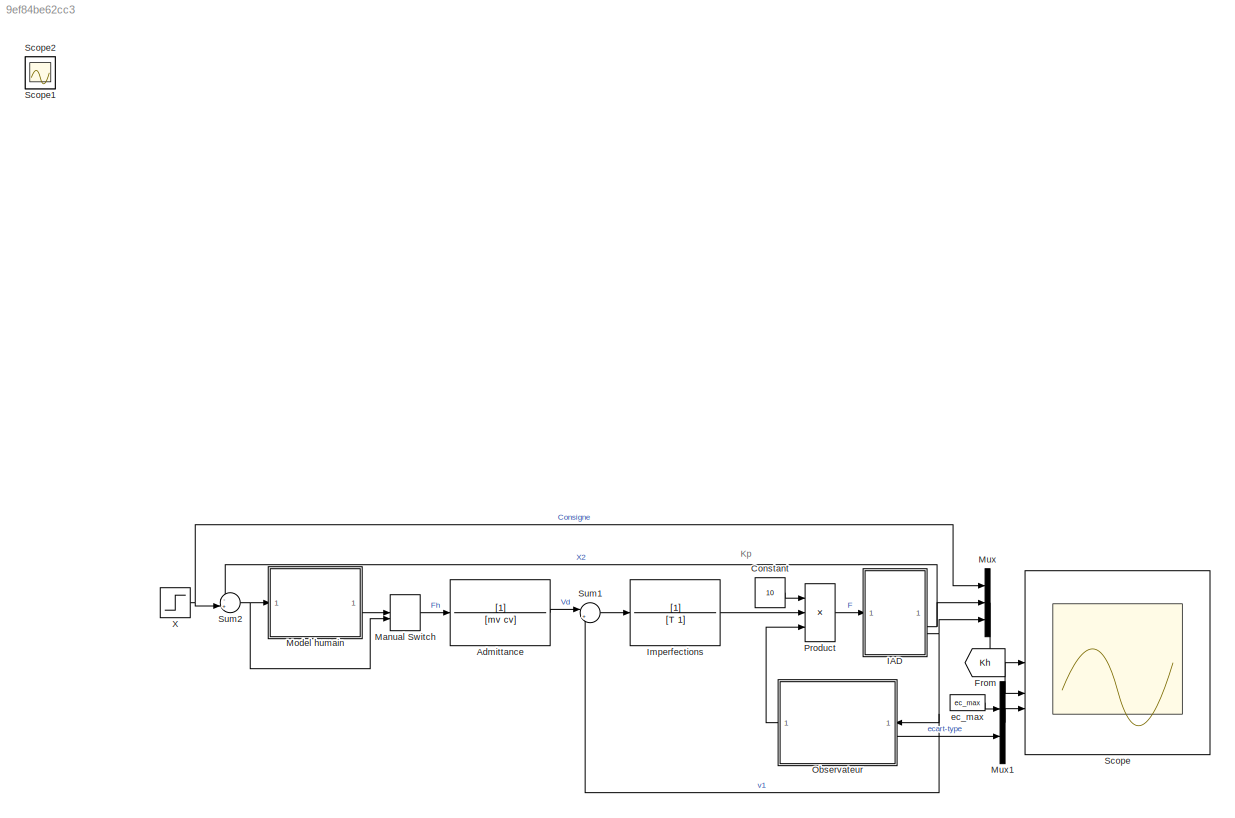
MODEL slx_9ef84be62cc3
KIND model
CONFIG AbsTol = auto
CONFIG EnableMultiTasking = off
CONFIG FixedStep = 0.1
CONFIG MaxStep = auto
CONFIG MinStep = auto
CONFIG RelTol = 1e-3
CONFIG SampleTimeConstraint = Unconstrained
CONFIG SolverName = VariableStepAuto
CONFIG StartTime = 0.0
CONFIG StopTime = sim_time
BLOCK [TransferFcn] Admittance
  Denominator = [mv cv]
BLOCK [Constant] Constant
  Value = 10
BLOCK [From] From
  GotoTag = Kh
  TagVisibility = global
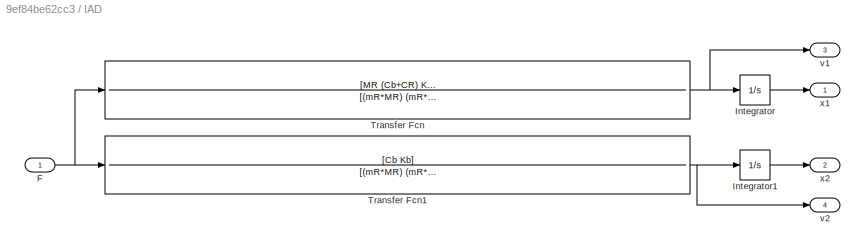
BLOCK [SubSystem] IAD
BLOCK [Inport] IAD/F
BLOCK [Integrator] IAD/Integrator
BLOCK [Integrator] IAD/Integrator1
BLOCK [TransferFcn] IAD/Transfer Fcn
  Denominator = [(mR*MR) (mR*Cb+mR*CR+Cb*MR) (mR*Kb+Kb*MR+Cb*CR) (Kb*CR)]
  Numerator = [MR (Cb+CR) Kb]
BLOCK [TransferFcn] IAD/Transfer Fcn1
  Denominator = [(mR*MR) (mR*Cb+mR*CR+Cb*MR) (mR*Kb+Kb*MR+Cb*CR) (Kb*CR)]
  Numerator = [Cb Kb]
BLOCK [Outport] IAD/v1
  Port = 3
BLOCK [Outport] IAD/v2
  Port = 4
BLOCK [Outport] IAD/x1
BLOCK [Outport] IAD/x2
  Port = 2
BLOCK [TransferFcn] Imperfections
  Denominator = [T 1]
BLOCK [ManualSwitch] Manual Switch
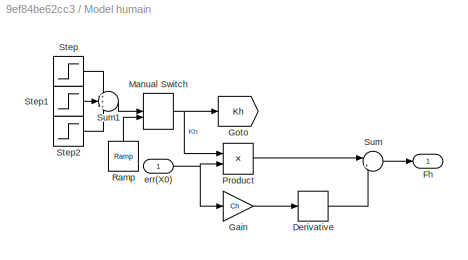
BLOCK [SubSystem] Model humain
BLOCK [Derivative] Model humain/Derivative
BLOCK [Outport] Model humain/Fh
BLOCK [Gain] Model humain/Gain
  Gain = Ch
BLOCK [Goto] Model humain/Goto
  GotoTag = Kh
  TagVisibility = global
BLOCK [ManualSwitch] Model humain/Manual Switch
  NameLocation = left
BLOCK [Product] Model humain/Product
BLOCK [Reference] Model humain/Ramp  REF=simulink/Sources/Ramp
  NameLocation = right
  SourceBlock = simulink/Sources/Ramp
  SourceType = Ramp
BLOCK [Step] Model humain/Step
  After = .05*Kh
  SampleTime = 0
  Time = 0
BLOCK [Step] Model humain/Step1
  After = Kh
  SampleTime = 0
  Time = .33*sim_time
BLOCK [Step] Model humain/Step2
  After = 1.05*Kh
  SampleTime = 0
  Time = .66*sim_time
BLOCK [Sum] Model humain/Sum
  Inputs = |++
BLOCK [Sum] Model humain/Sum1
  Inputs = +++
BLOCK [Inport] Model humain/err(X0)
BLOCK [Mux] Mux
  DisplayOption = bar
  Inputs = 3
BLOCK [Mux] Mux1
  DisplayOption = bar
  Inputs = 2
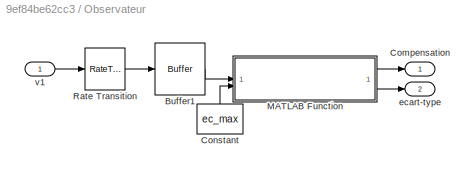
BLOCK [SubSystem] Observateur
  PortSchema = {"entries":[{"content":{"sides":[{"content":{"connectorIds":["In1","Out2"]},"type":"ConnectorPlacement.EquallySpacedRectSide","uuid":"ed91e94c-2bc3-435c-b365-2cdc5c8d0754"},{"content":{"connectorIds":["Out1"],"side":"RIGHT"},"type":"ConnectorPlacement.EquallySpacedRectSide","uuid":"50873d30-7472-4080-9c7b-629c41d27ace"},{"content":{"side":"TOP"},"type":"ConnectorPlacement.EquallySpacedRectSide","u...<+229ch>
BLOCK [Buffer] Observateur/Buffer1
  N = buffer_size
  V = buffer_size/2
BLOCK [Outport] Observateur/Compensation
  NameLocation = top
BLOCK [Constant] Observateur/Constant
  NameLocation = right
  Value = ec_max
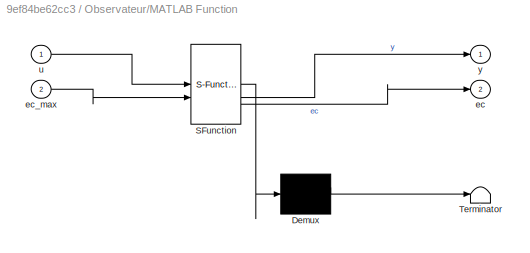
BLOCK [SubSystem] Observateur/MATLAB Function
  ErrorFcn = Stateflow.Translate.translate
  PermitHierarchicalResolution = ExplicitOnly
  SFBlockType = MATLAB Function
  TreatAsAtomicUnit = on
BLOCK [Demux] Observateur/MATLAB Function/ Demux 
  Outputs = 1
BLOCK [S-Function] Observateur/MATLAB Function/ SFunction 
  EnableBusSupport = on
  FunctionName = sf_sfun
  PortCounts = [2 3]
  SFcnIsStateOwnerBlock = off
  SFunctionDeploymentMode = off
  Tag = Stateflow S-Function 2
BLOCK [Terminator] Observateur/MATLAB Function/ Terminator 
BLOCK [Outport] Observateur/MATLAB Function/ec
  Port = 2
BLOCK [Inport] Observateur/MATLAB Function/ec_max
  Port = 2
BLOCK [Inport] Observateur/MATLAB Function/u
BLOCK [Outport] Observateur/MATLAB Function/y
BLOCK [RateTransition] Observateur/Rate Transition
  OutPortSampleTime = .01
BLOCK [Outport] Observateur/ecart-type
  Port = 2
BLOCK [Inport] Observateur/v1
  NameLocation = top
BLOCK [Product] Product
  Inputs = 3
BLOCK [Scope] Scope
  Floating = off
  NumInputPorts = 3
  ScopeSpecificationString = Simulink.scopes.TimeScopeBlockCfg('CurrentConfiguration', extmgr.ConfigurationSet(extmgr.Configuration('Core','General UI',true,'FigureColor',[0.941176470588235 0.941176470588235 0.941176470588235]),extmgr.Configuration('Core','Source UI',true),extmgr.Configuration('Sources','WiredSimulink',true,'DataLoggingVariableName','Data_System'),extmgr.Configuration('Visuals','Time Domain',true,'SerializedD...<+3596ch>
BLOCK [Scope] Scope1
  Floating = off
  IOType = viewer
  NumInputPorts = 1
  ScopeSpecificationString = Simulink.scopes.TimeScopeBlockCfg('CurrentConfiguration', extmgr.ConfigurationSet(extmgr.Configuration('Core','General UI',true),extmgr.Configuration('Core','Source UI',true),extmgr.Configuration('Sources','WiredSimulink',true,'DataLoggingVariableName','ScopeData1'),extmgr.Configuration('Visuals','Time Domain',true,'SerializedDisplays',{struct('MinYLimReal','171.875','MaxYLimReal','1203.125','YLab...<+1480ch>
BLOCK [Scope] Scope2
  Floating = off
  IOType = viewer
  NumInputPorts = 1
  ScopeSpecificationString = Simulink.scopes.TimeScopeBlockCfg('CurrentConfiguration', extmgr.ConfigurationSet(extmgr.Configuration('Core','General UI',true),extmgr.Configuration('Core','Source UI',true),extmgr.Configuration('Sources','WiredSimulink',true,'DataLoggingVariableName','ScopeData1'),extmgr.Configuration('Visuals','Time Domain',true,'SerializedDisplays',{struct('MinYLimReal','171.875','MaxYLimReal','1203.125','YLab...<+1482ch>
BLOCK [Sum] Sum1
  Inputs = |+-
BLOCK [Sum] Sum2
  Inputs = -+|
BLOCK [Step] X
  After = .2
  SampleTime = 0
  Time = .5
BLOCK [Constant] ec_max
  Value = ec_max
ANNOTATION (root): Kp
LINE Admittance:1 -> Sum1:1
LINE Constant:1 -> Product:1
LINE From:1 -> Scope:2
NET IAD/F:1 -> IAD/Transfer Fcn1:1, IAD/Transfer Fcn:1
LINE IAD/Integrator1:1 -> IAD/x2:1
LINE IAD/Integrator:1 -> IAD/x1:1
NET IAD/Transfer Fcn1:1 -> IAD/Integrator1:1, IAD/v2:1
NET IAD/Transfer Fcn:1 -> IAD/Integrator:1, IAD/v1:1
NET IAD:2 -> Mux:2, Sum2:1
NET IAD:3 -> Mux:3, Observateur:1, Sum1:2
LINE Imperfections:1 -> Product:2
LINE Manual Switch:1 -> Admittance:1
LINE Model humain/Derivative:1 -> Model humain/Sum:2
LINE Model humain/Gain:1 -> Model humain/Derivative:1
NET Model humain/Manual Switch:1 -> Model humain/Goto:1, Model humain/Product:1
LINE Model humain/Product:1 -> Model humain/Sum:1
LINE Model humain/Ramp:1 -> Model humain/Manual Switch:2
LINE Model humain/Step1:1 -> Model humain/Sum1:2
LINE Model humain/Step2:1 -> Model humain/Sum1:3
LINE Model humain/Step:1 -> Model humain/Sum1:1
LINE Model humain/Sum1:1 -> Model humain/Manual Switch:1
LINE Model humain/Sum:1 -> Model humain/Fh:1
NET Model humain/err(X0):1 -> Model humain/Gain:1, Model humain/Product:2
LINE Model humain:1 -> Manual Switch:1
LINE Mux1:1 -> Scope:3
LINE Mux:1 -> Scope:1
LINE Observateur/Buffer1:1 -> Observateur/MATLAB Function:1
LINE Observateur/Constant:1 -> Observateur/MATLAB Function:2
LINE Observateur/MATLAB Function:1 -> Observateur/Compensation:1
LINE Observateur/MATLAB Function:2 -> Observateur/ecart-type:1
LINE Observateur/Rate Transition:1 -> Observateur/Buffer1:1
LINE Observateur/v1:1 -> Observateur/Rate Transition:1
LINE Observateur:1 -> Product:3
LINE Observateur:2 -> Mux1:2
LINE Product:1 -> IAD:1
LINE Sum1:1 -> Imperfections:1
NET Sum2:1 -> Manual Switch:2, Model humain:1
NET X:1 -> Mux:1, Sum2:2
LINE ec_max:1 -> Mux1:1
note: NET lines group one-source signal fan-out (src -> all destinations, sorted); 1:1 wires keep LINE
CHART Observateur/MATLAB Function states=1 transitions=1
  STATE_LABEL 'eML_blk_kernel()'
  STATE_LABEL 'SCRIPT:\nfunction [y, ec] = fcn(u, ec_max)\n    ec = std(u);\n    y = 1 - ec * (1/ec_max);\nend\n'
CHART  states=0 transitions=0
